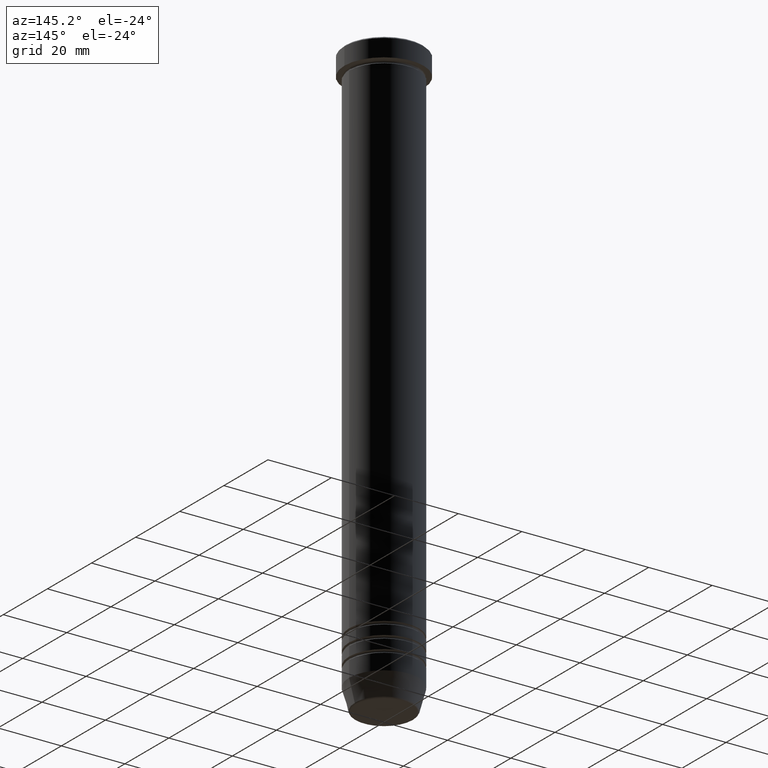
[diagram: clean part render]
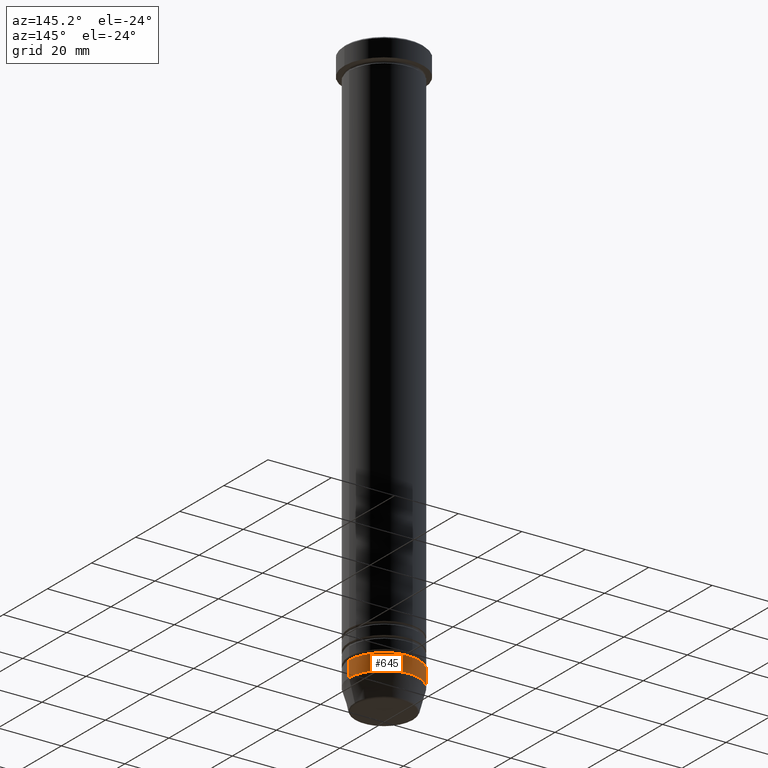
[diagram: same view with one face highlighted and labeled with its STEP entity id]
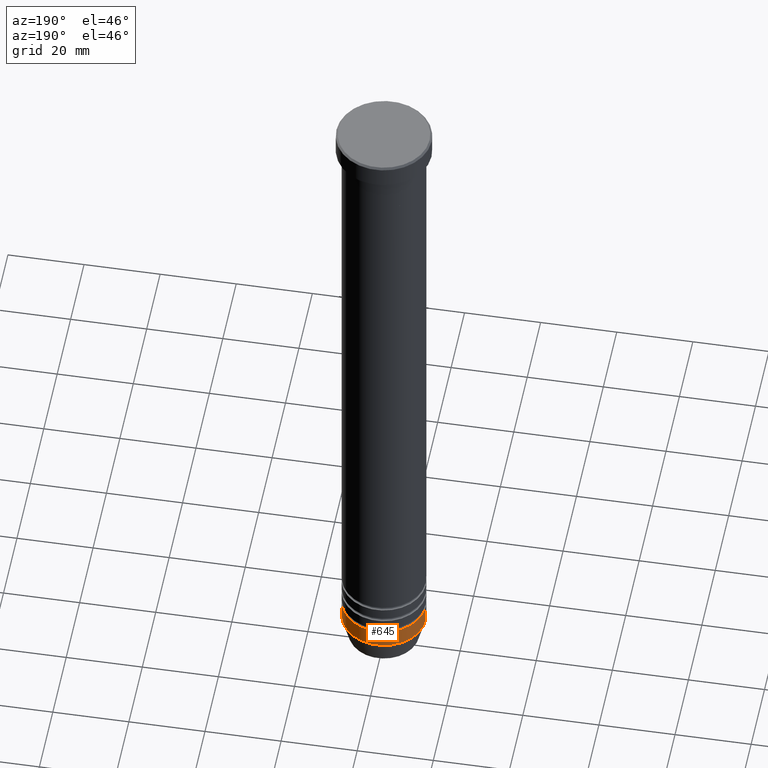
[diagram: same view with one face highlighted and labeled with its STEP entity id]
A machine part, auxiliary view. The second image highlights one B-rep face of the part: STEP entity #645.
A second angle (auxiliary view) of the same face is appended — the face is thin or edge-on in the first view.
In plain terms, the highlighted cylindrical surface (partial cylindrical patch) has radius 11 mm, axis along (-0, -0, 1).
Its self-contained STEP definition (entity closure, byte-faithful):
#6 = FACE_OUTER_BOUND ( 'NONE', #1018, .T. ) ;
#27 = VECTOR ( 'NONE', #895, 1000.000000000000000 ) ;
#134 = LINE ( 'NONE', #224, #1122 ) ;
#169 = CARTESIAN_POINT ( 'NONE',  ( 0.000000000000000000, 0.000000000000000000, 0.000000000000000000 ) ) ;
#214 = CIRCLE ( 'NONE', #700, 11.00000000000000178 ) ;
#224 = CARTESIAN_POINT ( 'NONE',  ( 11.00000000000000178, 0.000000000000000000, 0.000000000000000000 ) ) ;
#234 = AXIS2_PLACEMENT_3D ( 'NONE', #169, #867, #430 ) ;
#277 = EDGE_CURVE ( 'NONE', #920, #299, #456, .T. ) ;
#283 = CARTESIAN_POINT ( 'NONE',  ( 11.00000000000000178, 0.000000000000000000, -174.0000000000000000 ) ) ;
#297 = DIRECTION ( 'NONE',  ( 1.000000000000000000, 0.000000000000000000, 0.000000000000000000 ) ) ;
#299 = VERTEX_POINT ( 'NONE', #370 ) ;
#352 = ORIENTED_EDGE ( 'NONE', *, *, #277, .T. ) ;
#370 = CARTESIAN_POINT ( 'NONE',  ( -11.00000000000000178, 1.347111479062088602E-15, -174.0000000000000000 ) ) ;
#379 = AXIS2_PLACEMENT_3D ( 'NONE', #927, #654, #568 ) ;
#430 = DIRECTION ( 'NONE',  ( 1.000000000000000000, 0.000000000000000000, 0.000000000000000000 ) ) ;
#434 = CIRCLE ( 'NONE', #379, 11.00000000000000178 ) ;
#456 = LINE ( 'NONE', #558, #27 ) ;
#464 = DIRECTION ( 'NONE',  ( -0.000000000000000000, -0.000000000000000000, 1.000000000000000000 ) ) ;
#511 = ORIENTED_EDGE ( 'NONE', *, *, #888, .F. ) ;
#558 = CARTESIAN_POINT ( 'NONE',  ( -11.00000000000000178, 1.347111479062088602E-15, 0.000000000000000000 ) ) ;
#568 = DIRECTION ( 'NONE',  ( 1.000000000000000000, 0.000000000000000000, 0.000000000000000000 ) ) ;
#645 = ADVANCED_FACE ( 'NONE', ( #6 ), #769, .T. ) ;
#649 = CARTESIAN_POINT ( 'NONE',  ( 11.00000000000000178, 0.000000000000000000, -179.0000000000000000 ) ) ;
#654 = DIRECTION ( 'NONE',  ( -0.000000000000000000, -0.000000000000000000, 1.000000000000000000 ) ) ;
#669 = VERTEX_POINT ( 'NONE', #283 ) ;
#700 = AXIS2_PLACEMENT_3D ( 'NONE', #905, #464, #297 ) ;
#733 = ORIENTED_EDGE ( 'NONE', *, *, #847, .F. ) ;
#749 = CARTESIAN_POINT ( 'NONE',  ( -11.00000000000000178, 1.347111479062088602E-15, -179.0000000000000000 ) ) ;
#769 = CYLINDRICAL_SURFACE ( 'NONE', #234, 11.00000000000000178 ) ;
#771 = EDGE_CURVE ( 'NONE', #773, #920, #214, .T. ) ;
#773 = VERTEX_POINT ( 'NONE', #649 ) ;
#847 = EDGE_CURVE ( 'NONE', #669, #299, #434, .T. ) ;
#864 = DIRECTION ( 'NONE',  ( -0.000000000000000000, -0.000000000000000000, 1.000000000000000000 ) ) ;
#867 = DIRECTION ( 'NONE',  ( -0.000000000000000000, -0.000000000000000000, 1.000000000000000000 ) ) ;
#888 = EDGE_CURVE ( 'NONE', #773, #669, #134, .T. ) ;
#895 = DIRECTION ( 'NONE',  ( -0.000000000000000000, -0.000000000000000000, 1.000000000000000000 ) ) ;
#905 = CARTESIAN_POINT ( 'NONE',  ( 0.000000000000000000, 0.000000000000000000, -179.0000000000000000 ) ) ;
#920 = VERTEX_POINT ( 'NONE', #749 ) ;
#927 = CARTESIAN_POINT ( 'NONE',  ( 0.000000000000000000, 0.000000000000000000, -174.0000000000000000 ) ) ;
#980 = ORIENTED_EDGE ( 'NONE', *, *, #771, .T. ) ;
#1018 = EDGE_LOOP ( 'NONE', ( #980, #352, #733, #511 ) ) ;
#1122 = VECTOR ( 'NONE', #864, 1000.000000000000000 ) ;